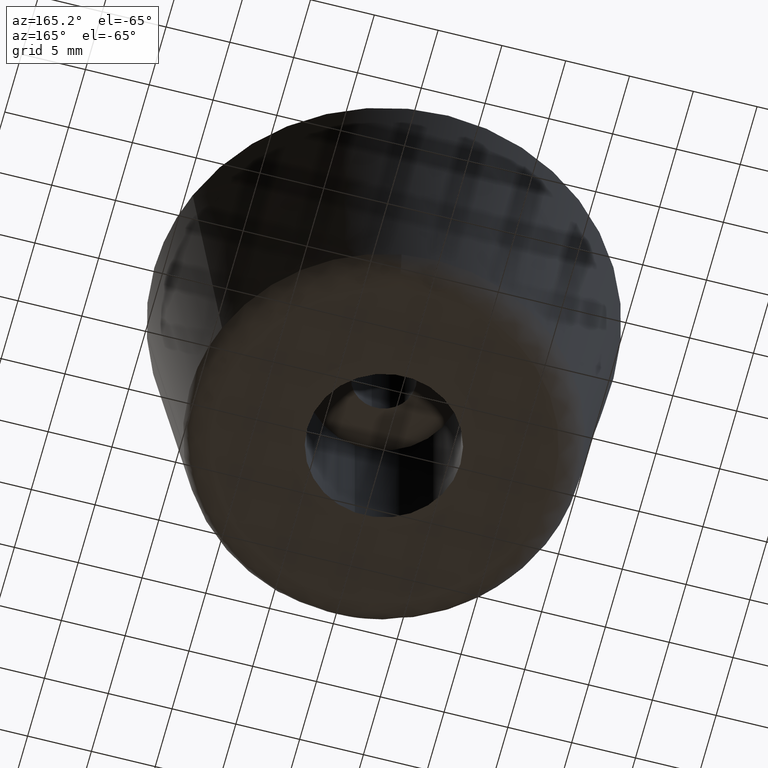
[diagram: clean part render]
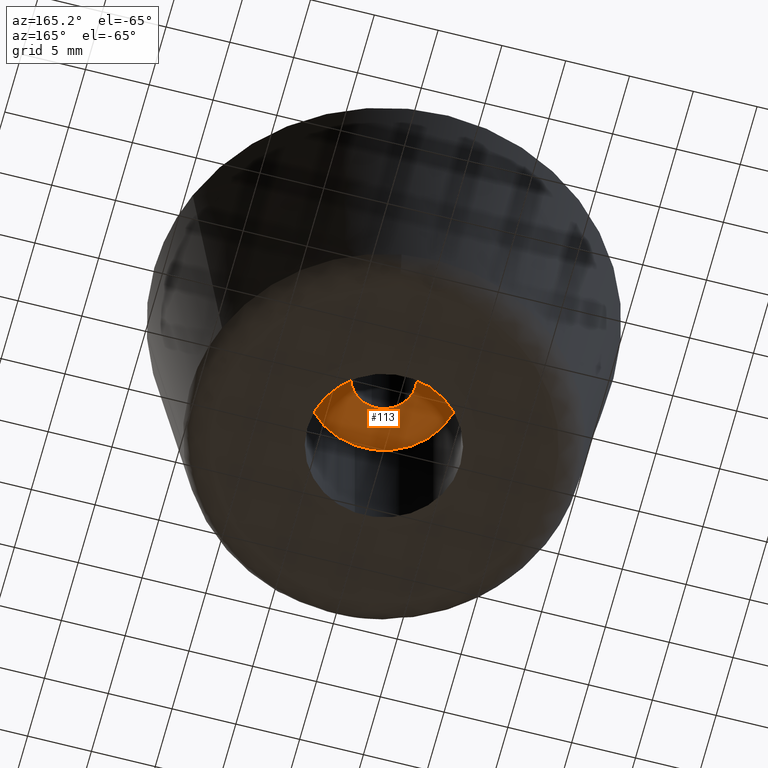
[diagram: same view with one face highlighted and labeled with its STEP entity id]
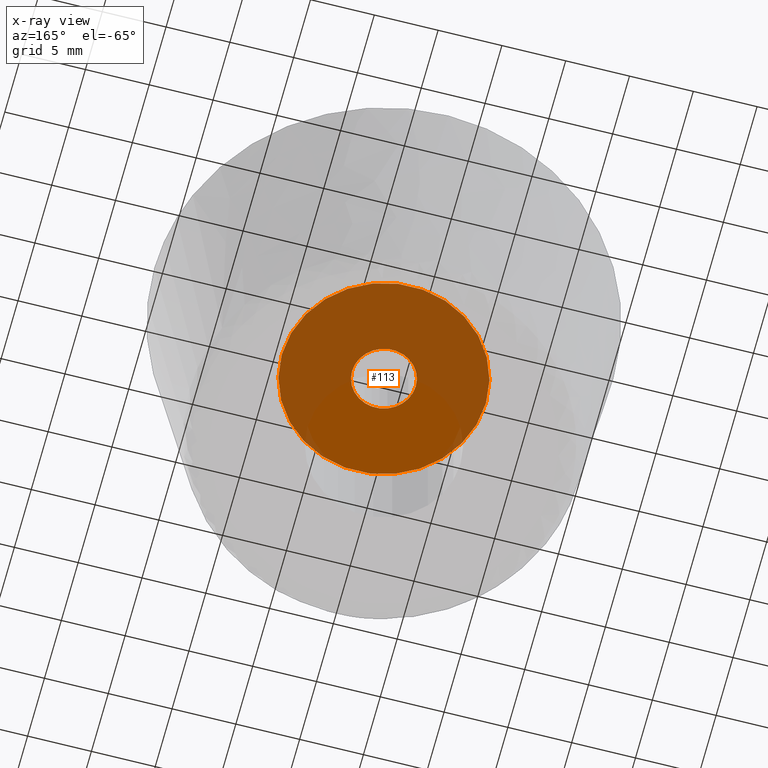
[diagram: x-ray of the same camera — body ghosted, the highlighted face saturated]
A machine part, auxiliary view. The second image highlights one B-rep face of the part: STEP entity #113.
The next image is the same camera in x-ray: the body ghosted, the highlighted face saturated — about 66% of this face is hidden behind the body in this view.
In plain terms, the highlighted planar face has unit normal (0, 0, 1).
Its self-contained STEP definition (entity closure, byte-faithful):
#113=ADVANCED_FACE('',(#144,#145),#143,.F.);
#143=PLANE('',#347);
#144=FACE_OUTER_BOUND('',#348,.T.);
#145=FACE_BOUND('',#349,.T.);
#344=CARTESIAN_POINT('',(-1.04000000000E+001,-1.66276877526E+001,1.20000000000E+001));
#345=DIRECTION('',(0.00000000000E+000,0.00000000000E+000,1.00000000000E+000));
#346=DIRECTION('',(1.00000000000E+000,0.00000000000E+000,0.00000000000E+000));
#347=AXIS2_PLACEMENT_3D('',#344,#345,#346);
#348=EDGE_LOOP('',(#504,#505,#506));
#349=EDGE_LOOP('',(#507,#508,#509));
#504=ORIENTED_EDGE('',*,*,#624,.T.);
#505=ORIENTED_EDGE('',*,*,#625,.T.);
#506=ORIENTED_EDGE('',*,*,#626,.T.);
#507=ORIENTED_EDGE('',*,*,#627,.F.);
#508=ORIENTED_EDGE('',*,*,#628,.F.);
#509=ORIENTED_EDGE('',*,*,#629,.F.);
#624=EDGE_CURVE('',#720,#721,#722,.T.);
#625=EDGE_CURVE('',#721,#728,#729,.T.);
#626=EDGE_CURVE('',#728,#720,#735,.T.);
#627=EDGE_CURVE('',#741,#742,#743,.T.);
#628=EDGE_CURVE('',#749,#741,#750,.T.);
#629=EDGE_CURVE('',#742,#749,#756,.T.);
#720=VERTEX_POINT('',#1114);
#721=VERTEX_POINT('',#1115);
#722=CIRCLE('',#1119,7.99999999999E+000);
#728=VERTEX_POINT('',#1120);
#729=CIRCLE('',#1124,7.99999999999E+000);
#735=CIRCLE('',#1128,7.99999999999E+000);
#741=VERTEX_POINT('',#1129);
#742=VERTEX_POINT('',#1130);
#743=CIRCLE('',#1134,2.50000000000E+000);
#749=VERTEX_POINT('',#1135);
#750=CIRCLE('',#1139,2.50000000000E+000);
#756=CIRCLE('',#1143,2.50000000000E+000);
#1114=CARTESIAN_POINT('',(-7.99999999998E+000,-3.44169137634E-015,1.20000000000E+001));
#1115=CARTESIAN_POINT('',(-9.45643227805E-001,7.94391332314E+000,1.20000000000E+001));
#1116=CARTESIAN_POINT('',(9.03987995571E-012,4.10960154795E-012,1.20000000000E+001));
#1117=DIRECTION('',(-1.39092469229E-012,-2.06921784159E-013,-1.00000000000E+000));
#1118=DIRECTION('',(-1.00000000000E+000,-5.13783460221E-013,1.39092469229E-012));
#1119=AXIS2_PLACEMENT_3D('',#1116,#1117,#1118);
#1120=CARTESIAN_POINT('',(9.44270195740E-001,-7.94407664850E+000,1.20000000000E+001));
#1121=CARTESIAN_POINT('',(9.03987995571E-012,4.10960154795E-012,1.20000000000E+001));
#1122=DIRECTION('',(-1.39092469229E-012,-2.06921784159E-013,-1.00000000000E+000));
#1123=DIRECTION('',(-1.00000000000E+000,-5.13783460221E-013,1.39092469229E-012));
#1124=AXIS2_PLACEMENT_3D('',#1121,#1122,#1123);
#1125=CARTESIAN_POINT('',(9.03987995571E-012,4.10960154795E-012,1.20000000000E+001));
#1126=DIRECTION('',(-1.39092469229E-012,-2.06921784159E-013,-1.00000000000E+000));
#1127=DIRECTION('',(-1.00000000000E+000,-5.13783460221E-013,1.39092469229E-012));
#1128=AXIS2_PLACEMENT_3D('',#1125,#1126,#1127);
#1129=CARTESIAN_POINT('',(2.95084678797E-001,-2.48252392382E+000,1.20000000000E+001));
#1130=CARTESIAN_POINT('',(-2.50000000000E+000,1.11022302463E-016,1.20000000000E+001));
#1131=CARTESIAN_POINT('',(1.59205981731E-013,7.21644966006E-014,1.20000000000E+001));
#1132=DIRECTION('',(-1.08425835475E-013,-1.78968349787E-014,-1.00000000000E+000));
#1133=DIRECTION('',(-1.00000000000E+000,-2.84633427938E-014,1.08425835475E-013));
#1134=AXIS2_PLACEMENT_3D('',#1131,#1132,#1133);
#1135=CARTESIAN_POINT('',(-2.95514653005E-001,2.48247277726E+000,1.20000000000E+001));
#1136=CARTESIAN_POINT('',(1.59205981731E-013,7.21644966006E-014,1.20000000000E+001));
#1137=DIRECTION('',(-1.08425835475E-013,-1.78968349787E-014,-1.00000000000E+000));
#1138=DIRECTION('',(-1.00000000000E+000,-2.84633427938E-014,1.08425835475E-013));
#1139=AXIS2_PLACEMENT_3D('',#1136,#1137,#1138);
#1140=CARTESIAN_POINT('',(1.59205981731E-013,7.21644966006E-014,1.20000000000E+001));
#1141=DIRECTION('',(-1.08425835475E-013,-1.78968349787E-014,-1.00000000000E+000));
#1142=DIRECTION('',(-1.00000000000E+000,-2.84633427938E-014,1.08425835475E-013));
#1143=AXIS2_PLACEMENT_3D('',#1140,#1141,#1142);